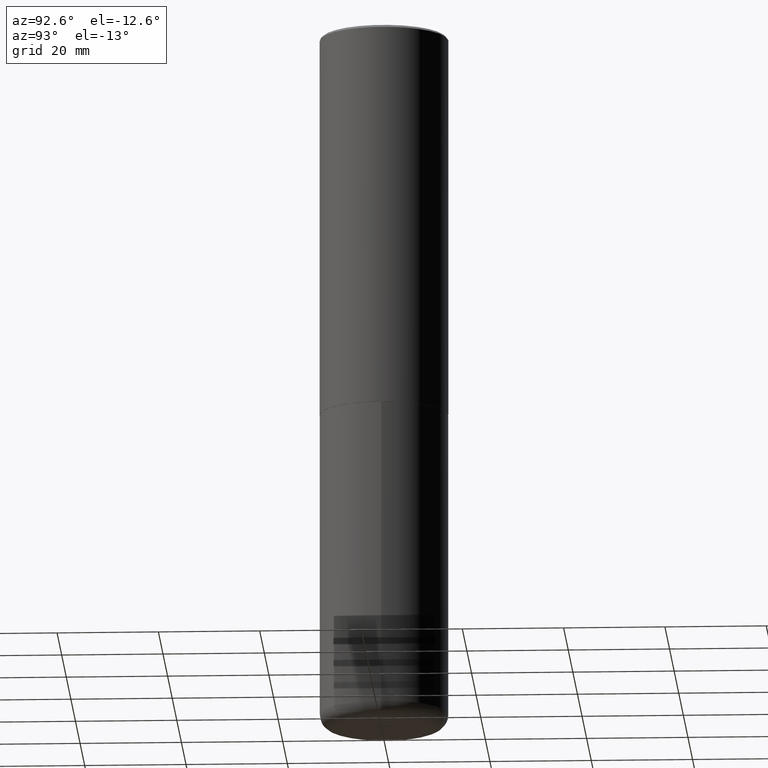
[diagram: clean part render]
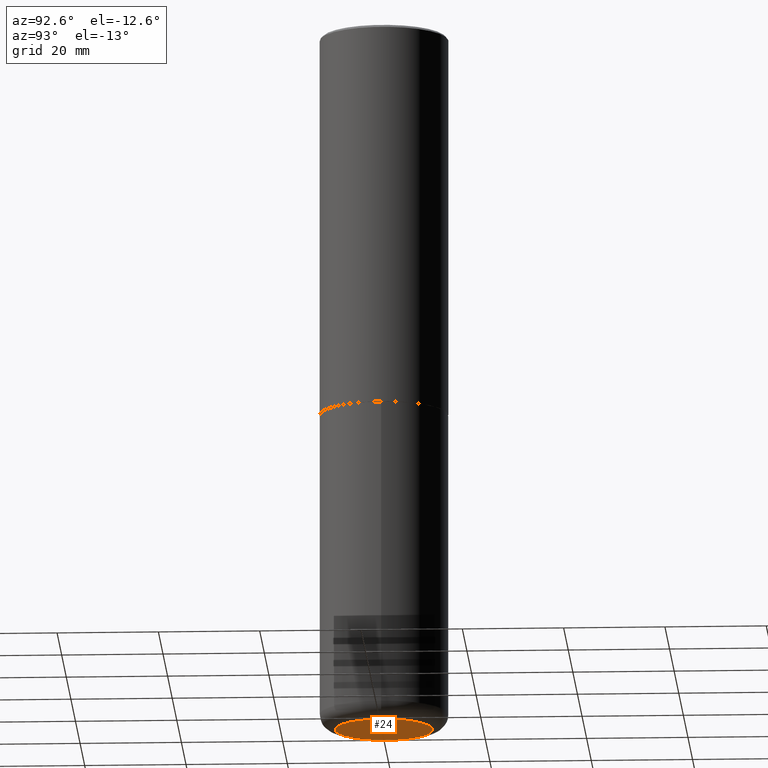
[diagram: same view with one face highlighted and labeled with its STEP entity id]
A machine part, auxiliary view. The second image highlights one B-rep face of the part: STEP entity #24.
In plain terms, the highlighted planar face has unit normal (0, -0, -1).
Its self-contained STEP definition (entity closure, byte-faithful):
#23 = EDGE_LOOP ( 'NONE', ( #124, #340 ) ) ;
#24 = ADVANCED_FACE ( 'NONE', ( #196 ), #61, .T. ) ;
#33 = DIRECTION ( 'NONE',  ( -2.445468806185136597E-29, 3.491481338843145583E-15, 1.000000000000000000 ) ) ;
#61 = PLANE ( 'NONE',  #355 ) ;
#84 = CARTESIAN_POINT ( 'NONE',  ( 0.3799999999999999489, -2.185667318115807981E-14, -5.500000000000000000 ) ) ;
#108 = VERTEX_POINT ( 'NONE', #377 ) ;
#116 = CIRCLE ( 'NONE', #162, 0.3799999999999999489 ) ;
#118 = CIRCLE ( 'NONE', #276, 0.3799999999999999489 ) ;
#124 = ORIENTED_EDGE ( 'NONE', *, *, #143, .F. ) ;
#143 = EDGE_CURVE ( 'NONE', #313, #108, #116, .T. ) ;
#162 = AXIS2_PLACEMENT_3D ( 'NONE', #267, #382, #385 ) ;
#175 = CARTESIAN_POINT ( 'NONE',  ( 1.345007843401824904E-28, -1.920314736363729972E-14, -5.500000000000000000 ) ) ;
#196 = FACE_OUTER_BOUND ( 'NONE', #23, .T. ) ;
#224 = DIRECTION ( 'NONE',  ( 1.000000000000000000, -6.982962677686261977E-15, 0.000000000000000000 ) ) ;
#259 = DIRECTION ( 'NONE',  ( 2.438088387897960049E-29, -3.491481338843145188E-15, -1.000000000000000000 ) ) ;
#266 = DIRECTION ( 'NONE',  ( -1.000000000000000000, 6.982962677686265922E-15, -4.876176775795935793E-29 ) ) ;
#267 = CARTESIAN_POINT ( 'NONE',  ( 1.345007843401824904E-28, -1.920314736363729972E-14, -5.500000000000000000 ) ) ;
#276 = AXIS2_PLACEMENT_3D ( 'NONE', #175, #33, #224 ) ;
#313 = VERTEX_POINT ( 'NONE', #84 ) ;
#324 = CARTESIAN_POINT ( 'NONE',  ( 1.345007843401824904E-28, -1.920314736363729972E-14, -5.500000000000000000 ) ) ;
#340 = ORIENTED_EDGE ( 'NONE', *, *, #380, .F. ) ;
#355 = AXIS2_PLACEMENT_3D ( 'NONE', #324, #259, #266 ) ;
#377 = CARTESIAN_POINT ( 'NONE',  ( -0.3799999999999999489, -1.586727044596227254E-14, -5.500000000000000000 ) ) ;
#380 = EDGE_CURVE ( 'NONE', #108, #313, #118, .T. ) ;
#382 = DIRECTION ( 'NONE',  ( -2.445468806185136597E-29, 3.491481338843145583E-15, 1.000000000000000000 ) ) ;
#385 = DIRECTION ( 'NONE',  ( 1.000000000000000000, -6.982962677686261977E-15, 0.000000000000000000 ) ) ;